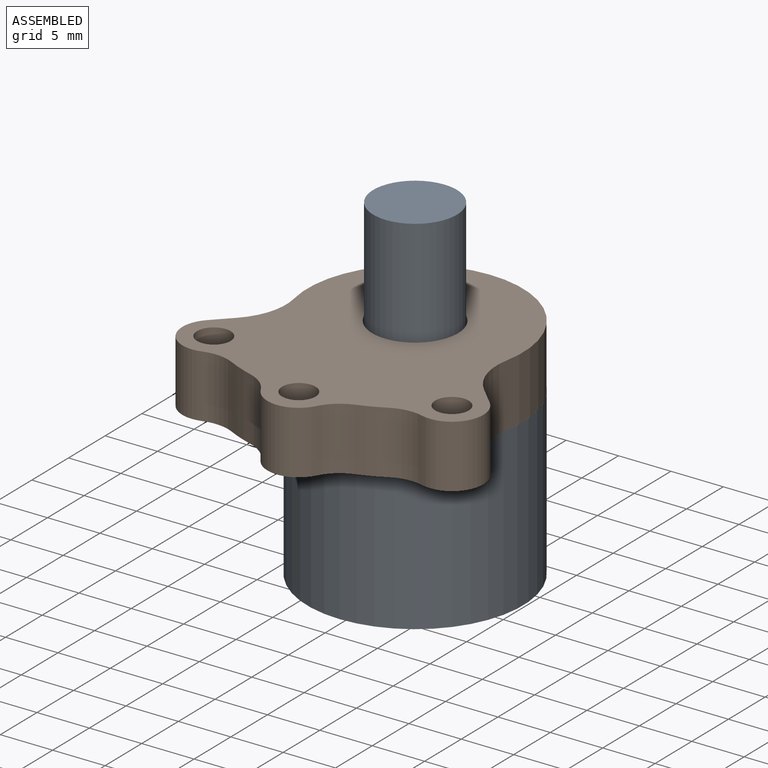
[diagram: assembled view]
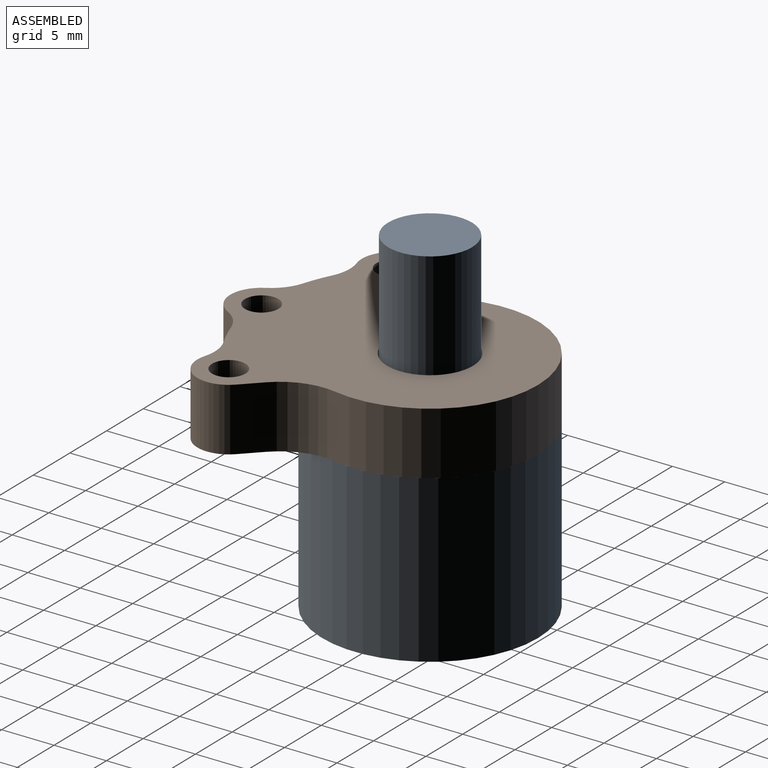
[diagram: assembled view, second angle]
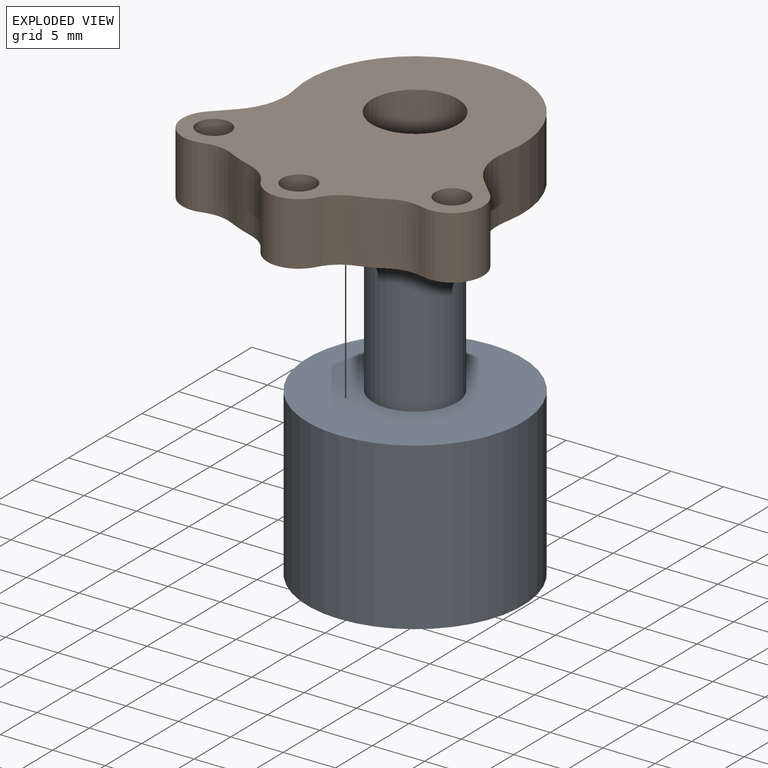
[diagram: exploded view]
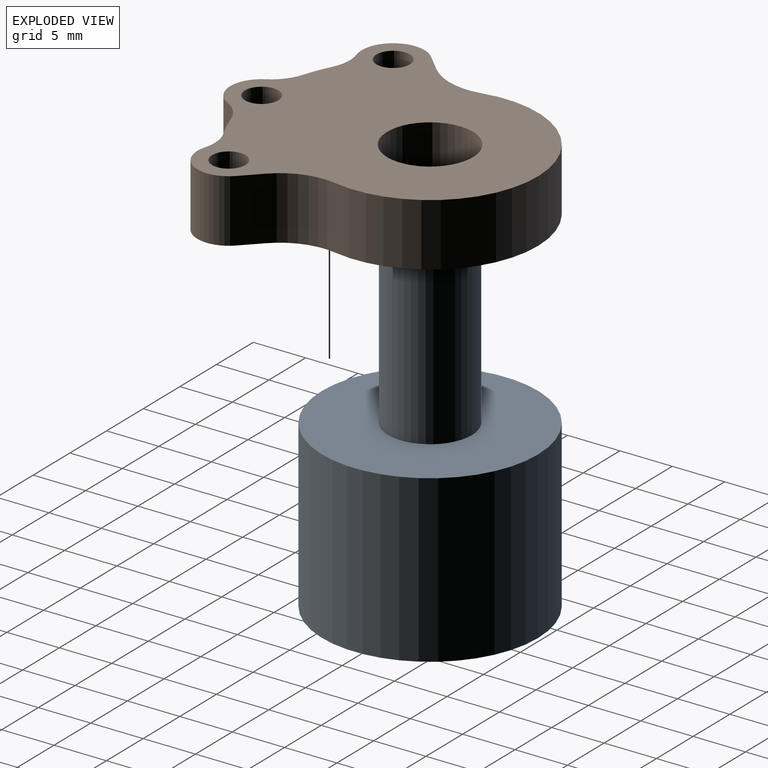
[diagram: exploded view, second angle]
ASSEMBLY  parts=2 mates=2
PART A: 6 faces, bbox 20.6x20.6x35.8 mm
  f0: cylinder r=4mm len=16.2mm, axis (0,0,1), area 407.2mm2, adj f1,f5
  f1: plane 20.6x20.6mm, normal (0,0,1), area 283mm2, adj f0,f2
  f2: cylinder r=10.3mm len=20.6mm, axis (0,0,1), area 1024.8mm2, adj f1,f3
  f3: plane 20.6x20.6mm, normal (0,0,-1), area 227.6mm2, adj f2,f4
  f4: sphere r=6.35mm, area 150.2mm2, adj f3
  f5: plane 8x8mm, normal (0,0,1), area 50.3mm2, adj f0
PART B: 20 faces, bbox 29.3x29.3x6 mm
  f0: cylinder r=3mm len=6mm, axis (0,0,-1), area 38.8mm2, adj f9,f10,f16,f19
  f1: cylinder r=16.28mm len=6mm, axis (0,0,-1), area 16.4mm2, adj f9,f10,f16,f17
  f2: cylinder r=3mm len=6mm, axis (0,0,-1), area 47.7mm2, adj f3,f9,f10,f17
  f3: plane 6x2.41mm, normal (0,1,0), area 14.5mm2, adj f2,f9,f10,f14
  f4: cylinder r=10.3mm len=18.89mm, axis (0,0,-1), area 218.9mm2, adj f9,f10,f14,f15
  f5: plane 6x2.41mm, normal (-1,0,0), area 14.5mm2, adj f6,f9,f10,f15
  f6: cylinder r=3mm len=6mm, axis (0,0,-1), area 47.7mm2, adj f5,f9,f10,f18
  f7: cylinder r=16.28mm len=6mm, axis (0,0,-1), area 16.4mm2, adj f9,f10,f18,f19
  f8: cylinder r=4.1mm len=8.2mm, axis (0,0,-1), area 154.6mm2, adj f9,f10
  f9: plane 29.3x29.3mm, normal (0,0,1), area 462.9mm2, adj f0,f1,f2,f3,f4,f5,f6,f7
  f10: plane 29.3x29.3mm, normal (0,0,-1), area 462.9mm2, adj f0,f1,f2,f3,f4,f5,f6,f7
  f11: cylinder r=1.6mm len=6mm, axis (0,0,-1), area 60.3mm2, adj f9,f10
  f12: cylinder r=1.6mm len=6mm, axis (0,0,-1), area 60.3mm2, adj f9,f10
  f13: cylinder r=1.6mm len=6mm, axis (0,0,-1), area 60.3mm2, adj f9,f10
  f14: cylinder r=6mm len=6mm, axis (0,0,-1), area 35.5mm2, adj f3,f4,f9,f10
  f15: cylinder r=6mm len=6mm, axis (0,0,-1), area 35.5mm2, adj f4,f5,f9,f10
  f16: cylinder r=4mm len=6mm, axis (0,0,1), area 18.4mm2, adj f0,f1,f9,f10
  f17: cylinder r=4mm len=6mm, axis (0,0,1), area 18.4mm2, adj f1,f2,f9,f10
  f18: cylinder r=4mm len=6mm, axis (0,0,1), area 18.4mm2, adj f6,f7,f9,f10
  f19: cylinder r=4mm len=6mm, axis (0,0,1), area 18.4mm2, adj f0,f7,f9,f10
PLACE A t=(0.11,-0.03,-18.04)mm fixed
PLACE B rot(axis=(0,0,-1),44.6deg) t=(0.11,-0.03,1.56)mm
MATE planar B.f10 <-> A.f0  axis (0,0,-1) through (0.14,-4.58,1.56)mm
MATE cylindrical B.f8 <-> A.f0  axis (0,0,-1) through (0.11,-0.03,7.56)mm
